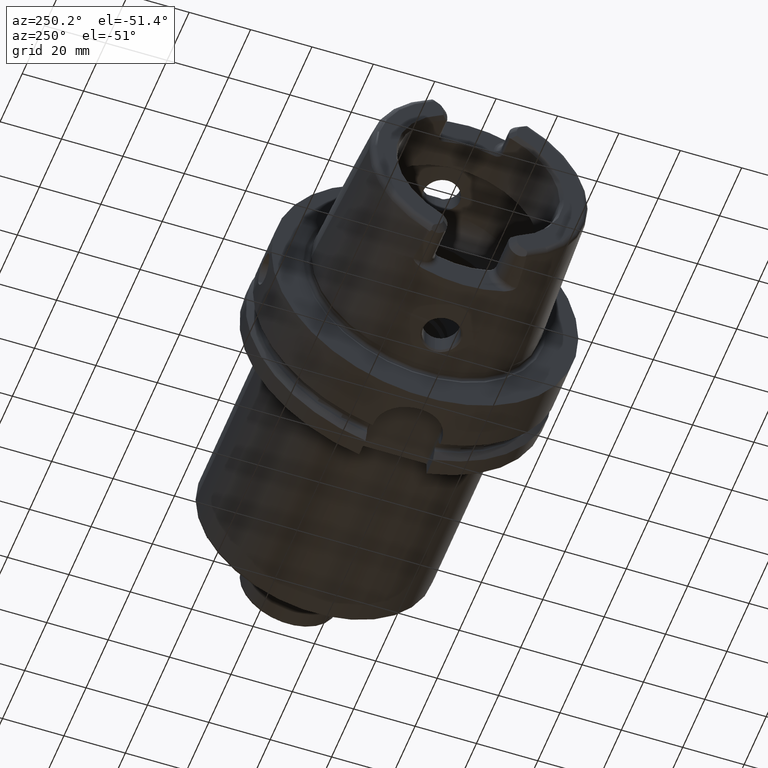
[diagram: clean part render]
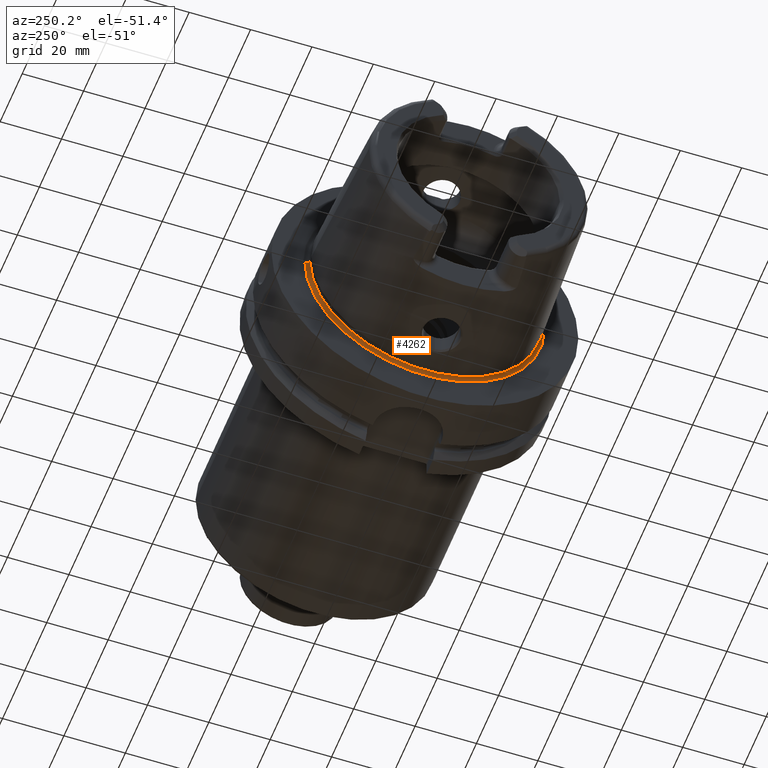
[diagram: same view with one face highlighted and labeled with its STEP entity id]
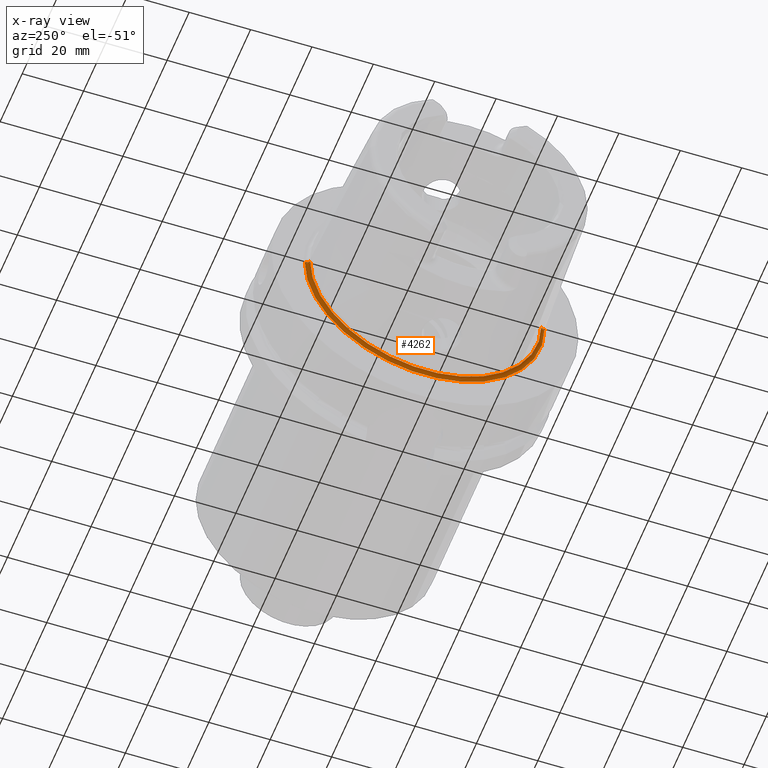
[diagram: x-ray of the same camera — body ghosted, the highlighted face saturated]
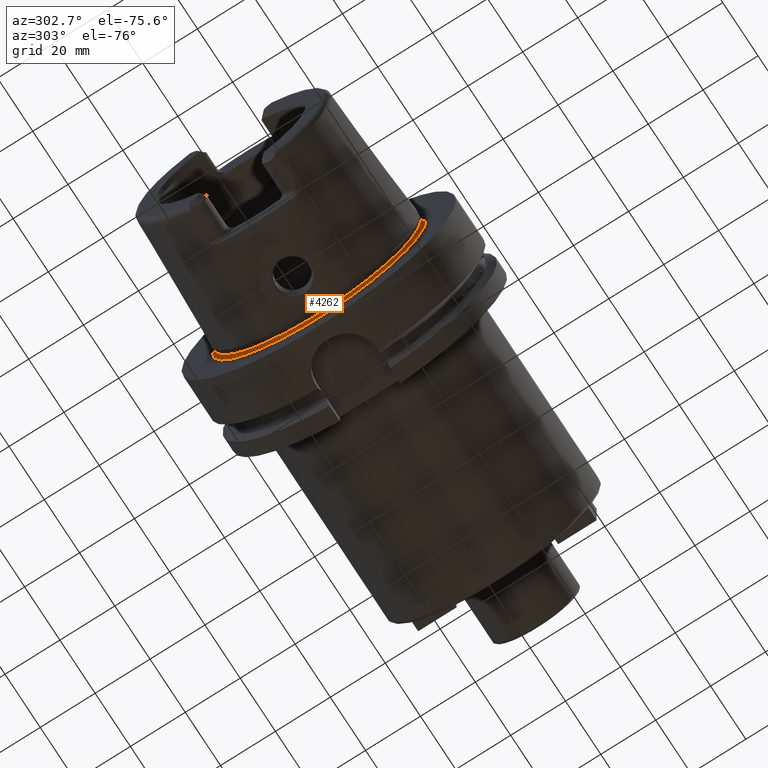
[diagram: same view with one face highlighted and labeled with its STEP entity id]
A machine part, auxiliary view. The second image highlights one B-rep face of the part: STEP entity #4262.
The next image is the same camera in x-ray: the body ghosted, the highlighted face saturated — about 0% of this face is hidden behind the body in this view.
A second angle (auxiliary view) of the same face is appended — the face is thin or edge-on in the first view.
In plain terms, the highlighted toroidal blend (fillet) surface has major radius 38.6823 mm and minor (blend) radius 1 mm.
Its self-contained STEP definition (entity closure, byte-faithful):
#867=CARTESIAN_POINT('',(-7.005712886803E-1,0.E0,0.E0));
#868=DIRECTION('',(-1.E0,0.E0,0.E0));
#869=DIRECTION('',(0.E0,1.E0,0.E0));
#870=AXIS2_PLACEMENT_3D('',#867,#868,#869);
#882=CARTESIAN_POINT('',(-7.005712886803E-1,3.868225E1,0.E0));
#883=DIRECTION('',(0.E0,0.E0,-1.E0));
#884=DIRECTION('',(9.304175679820E-1,3.665012267243E-1,0.E0));
#885=AXIS2_PLACEMENT_3D('',#882,#883,#884);
#887=CARTESIAN_POINT('',(-7.005712886803E-1,-3.868225E1,0.E0));
#888=DIRECTION('',(0.E0,0.E0,1.E0));
#889=DIRECTION('',(9.304175679820E-1,-3.665012267243E-1,0.E0));
#890=AXIS2_PLACEMENT_3D('',#887,#888,#889);
#892=CARTESIAN_POINT('',(2.298462793018E-1,0.E0,0.E0));
#893=DIRECTION('',(-1.E0,0.E0,0.E0));
#894=DIRECTION('',(0.E0,1.E0,0.E0));
#895=AXIS2_PLACEMENT_3D('',#892,#893,#894);
#2831=CARTESIAN_POINT('',(2.298462793018E-1,-3.904875122672E1,0.E0));
#2832=CARTESIAN_POINT('',(-7.005712886803E-1,-3.768225E1,0.E0));
#2833=VERTEX_POINT('',#2831);
#2834=VERTEX_POINT('',#2832);
#2839=CARTESIAN_POINT('',(2.298462793018E-1,3.904875122672E1,0.E0));
#2840=CARTESIAN_POINT('',(-7.005712886803E-1,3.768225E1,0.E0));
#2841=VERTEX_POINT('',#2839);
#2842=VERTEX_POINT('',#2840);
#4250=CARTESIAN_POINT('',(-7.005712886803E-1,0.E0,0.E0));
#4251=DIRECTION('',(-1.E0,0.E0,0.E0));
#4252=DIRECTION('',(0.E0,-1.E0,0.E0));
#4253=AXIS2_PLACEMENT_3D('',#4250,#4251,#4252);
#4254=TOROIDAL_SURFACE('',#4253,3.868225E1,1.E0);
#4255=ORIENTED_EDGE('',*,*,#4243,.T.);
#4256=ORIENTED_EDGE('',*,*,#4217,.T.);
#4257=ORIENTED_EDGE('',*,*,#4240,.F.);
#4259=ORIENTED_EDGE('',*,*,#4258,.F.);
#4260=EDGE_LOOP('',(#4255,#4256,#4257,#4259));
#4261=FACE_OUTER_BOUND('',#4260,.F.);
#4262=ADVANCED_FACE('',(#4261),#4254,.F.);
#871=CIRCLE('',#870,3.768225E1);
#886=CIRCLE('',#885,1.E0);
#891=CIRCLE('',#890,1.E0);
#896=CIRCLE('',#895,3.904875122672E1);
#4217=EDGE_CURVE('',#2842,#2834,#871,.T.);
#4240=EDGE_CURVE('',#2833,#2834,#891,.T.);
#4243=EDGE_CURVE('',#2841,#2842,#886,.T.);
#4258=EDGE_CURVE('',#2841,#2833,#896,.T.);